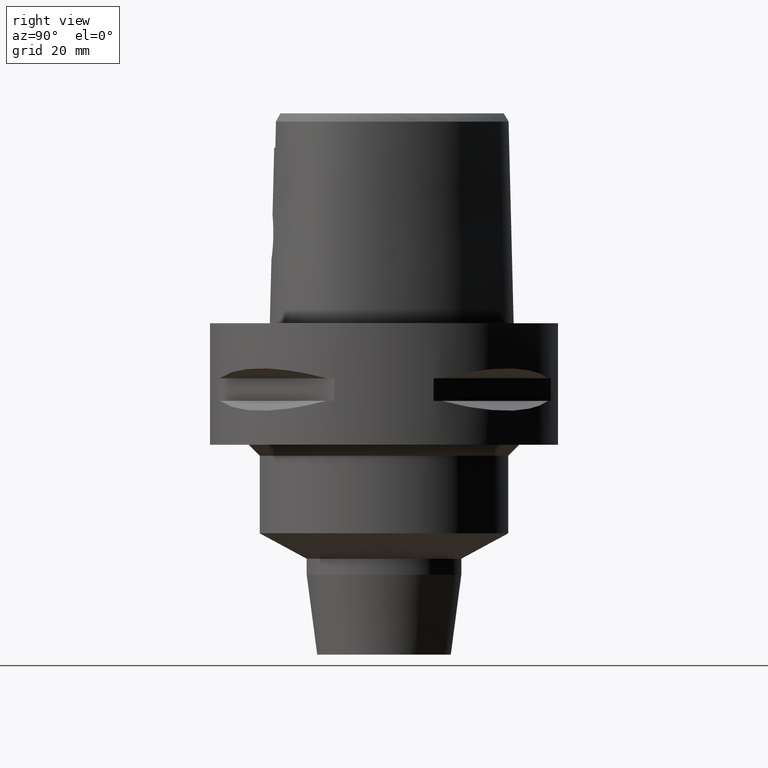
[diagram: clean part render]
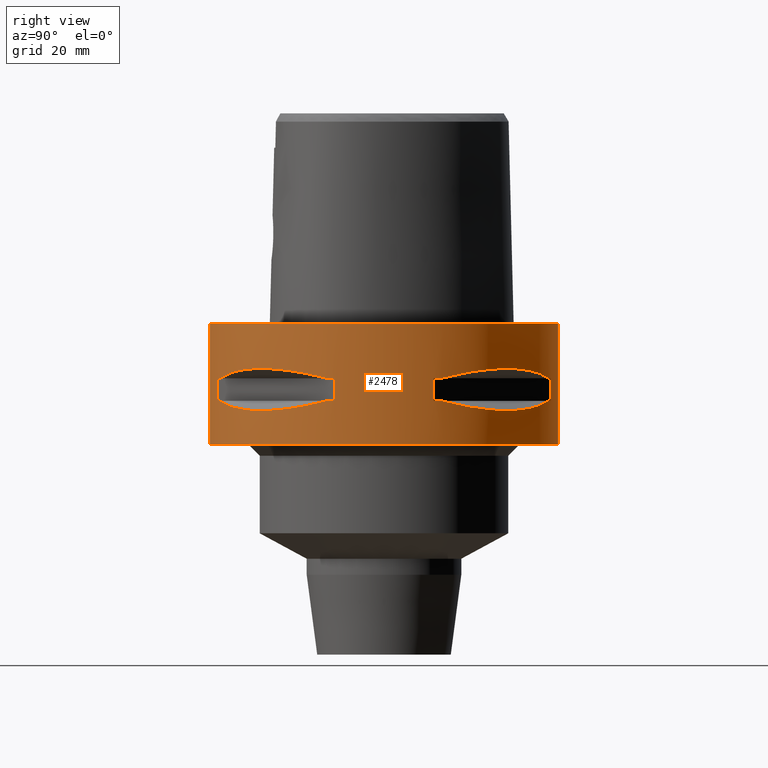
[diagram: same view with one face highlighted and labeled with its STEP entity id]
A machine part, right view. The second image highlights one B-rep face of the part: STEP entity #2478.
In plain terms, the highlighted cylindrical surface (partial cylindrical patch) has radius 31.5 mm, axis along (0, 0, -1).
Its self-contained STEP definition (entity closure, byte-faithful):
#309=CARTESIAN_POINT('',(0.E0,0.E0,0.E0));
#310=DIRECTION('',(0.E0,0.E0,-1.E0));
#311=DIRECTION('',(0.E0,1.E0,0.E0));
#312=AXIS2_PLACEMENT_3D('',#309,#310,#311);
#407=DIRECTION('',(0.E0,0.E0,-1.E0));
#408=VECTOR('',#407,2.2E1);
#409=CARTESIAN_POINT('',(0.E0,-3.15E1,0.E0));
#410=LINE('',#409,#408);
#464=DIRECTION('',(0.E0,0.E0,-1.E0));
#465=VECTOR('',#464,2.2E1);
#466=CARTESIAN_POINT('',(0.E0,3.15E1,0.E0));
#467=LINE('',#466,#465);
#471=DIRECTION('',(0.E0,0.E0,-1.E0));
#472=VECTOR('',#471,4.1E0);
#473=CARTESIAN_POINT('',(8.981198972018E0,-3.019251670572E1,-9.95E0));
#474=LINE('',#473,#472);
#478=CARTESIAN_POINT('',(1.044775724750E1,-2.971690375018E1,-1.405E1));
#479=CARTESIAN_POINT('',(1.282388988809E1,-2.888151197365E1,-1.467900482380E1));
#480=CARTESIAN_POINT('',(1.711282138769E1,-2.674739463903E1,-1.555870402292E1));
#481=CARTESIAN_POINT('',(2.244574140438E1,-2.244574140438E1,-1.597971692370E1));
#482=CARTESIAN_POINT('',(2.674739463903E1,-1.711282138769E1,-1.555870402292E1));
#483=CARTESIAN_POINT('',(2.888151197365E1,-1.282388988809E1,-1.467900482380E1));
#484=CARTESIAN_POINT('',(2.971690375018E1,-1.044775724750E1,-1.405E1));
#489=DIRECTION('',(0.E0,0.E0,1.E0));
#490=VECTOR('',#489,4.1E0);
#491=CARTESIAN_POINT('',(3.019251670572E1,-8.981198972018E0,-1.405E1));
#492=LINE('',#491,#490);
#496=DIRECTION('',(0.E0,0.E0,-1.E0));
#497=VECTOR('',#496,4.1E0);
#498=CARTESIAN_POINT('',(3.019251670572E1,8.981198972018E0,-9.95E0));
#499=LINE('',#498,#497);
#503=CARTESIAN_POINT('',(2.971690375018E1,1.044775724750E1,-1.405E1));
#504=CARTESIAN_POINT('',(2.888151197365E1,1.282388988809E1,-1.467900482380E1));
#505=CARTESIAN_POINT('',(2.674739463903E1,1.711282138769E1,-1.555870402292E1));
#506=CARTESIAN_POINT('',(2.244574140438E1,2.244574140438E1,-1.597971692370E1));
#507=CARTESIAN_POINT('',(1.711282138769E1,2.674739463903E1,-1.555870402292E1));
#508=CARTESIAN_POINT('',(1.282388988809E1,2.888151197365E1,-1.467900482380E1));
#509=CARTESIAN_POINT('',(1.044775724750E1,2.971690375018E1,-1.405E1));
#514=DIRECTION('',(0.E0,0.E0,1.E0));
#515=VECTOR('',#514,4.1E0);
#516=CARTESIAN_POINT('',(8.981198972018E0,3.019251670572E1,-1.405E1));
#517=LINE('',#516,#515);
#521=CARTESIAN_POINT('',(0.E0,0.E0,-2.2E1));
#522=DIRECTION('',(0.E0,0.E0,1.E0));
#523=DIRECTION('',(0.E0,-1.E0,0.E0));
#524=AXIS2_PLACEMENT_3D('',#521,#522,#523);
#1234=CARTESIAN_POINT('',(1.044775724750E1,-2.971690375018E1,
-9.949999999999E0));
#1235=CARTESIAN_POINT('',(1.282388988809E1,-2.888151197365E1,
-9.320995176198E0));
#1236=CARTESIAN_POINT('',(1.711282138769E1,-2.674739463903E1,
-8.441295977074E0));
#1237=CARTESIAN_POINT('',(2.244574140438E1,-2.244574140438E1,
-8.020283076294E0));
#1238=CARTESIAN_POINT('',(2.674739463903E1,-1.711282138769E1,
-8.441295977074E0));
#1239=CARTESIAN_POINT('',(2.888151197365E1,-1.282388988809E1,
-9.320995176198E0));
#1240=CARTESIAN_POINT('',(2.971690375018E1,-1.044775724750E1,
-9.949999999999E0));
#1245=CARTESIAN_POINT('',(0.E0,0.E0,-9.95E0));
#1246=DIRECTION('',(0.E0,0.E0,1.E0));
#1247=DIRECTION('',(9.433937698469E-1,-3.316748332541E-1,0.E0));
#1248=AXIS2_PLACEMENT_3D('',#1245,#1246,#1247);
#1253=CARTESIAN_POINT('',(0.E0,0.E0,-9.95E0));
#1254=DIRECTION('',(0.E0,0.E0,1.E0));
#1255=DIRECTION('',(2.851174276832E-1,-9.584925938323E-1,0.E0));
#1256=AXIS2_PLACEMENT_3D('',#1253,#1254,#1255);
#1275=CARTESIAN_POINT('',(0.E0,0.E0,-1.405E1));
#1276=DIRECTION('',(0.E0,0.E0,-1.E0));
#1277=DIRECTION('',(9.584925938323E-1,-2.851174276832E-1,0.E0));
#1278=AXIS2_PLACEMENT_3D('',#1275,#1276,#1277);
#1283=CARTESIAN_POINT('',(0.E0,0.E0,-1.405E1));
#1284=DIRECTION('',(0.E0,0.E0,-1.E0));
#1285=DIRECTION('',(3.316748332541E-1,-9.433937698469E-1,0.E0));
#1286=AXIS2_PLACEMENT_3D('',#1283,#1284,#1285);
#1305=CARTESIAN_POINT('',(2.971690375018E1,1.044775724750E1,-9.949999999999E0));
#1306=CARTESIAN_POINT('',(2.888151197365E1,1.282388988809E1,-9.320995176198E0));
#1307=CARTESIAN_POINT('',(2.674739463903E1,1.711282138769E1,-8.441295977074E0));
#1308=CARTESIAN_POINT('',(2.244574140438E1,2.244574140438E1,-8.020283076294E0));
#1309=CARTESIAN_POINT('',(1.711282138769E1,2.674739463903E1,-8.441295977074E0));
#1310=CARTESIAN_POINT('',(1.282388988809E1,2.888151197365E1,-9.320995176198E0));
#1311=CARTESIAN_POINT('',(1.044775724750E1,2.971690375018E1,-9.949999999999E0));
#1316=CARTESIAN_POINT('',(0.E0,0.E0,-9.95E0));
#1317=DIRECTION('',(0.E0,0.E0,1.E0));
#1318=DIRECTION('',(3.316748332541E-1,9.433937698469E-1,0.E0));
#1319=AXIS2_PLACEMENT_3D('',#1316,#1317,#1318);
#1324=CARTESIAN_POINT('',(0.E0,0.E0,-9.95E0));
#1325=DIRECTION('',(0.E0,0.E0,1.E0));
#1326=DIRECTION('',(9.584925938323E-1,2.851174276832E-1,0.E0));
#1327=AXIS2_PLACEMENT_3D('',#1324,#1325,#1326);
#1346=CARTESIAN_POINT('',(0.E0,0.E0,-1.405E1));
#1347=DIRECTION('',(0.E0,0.E0,-1.E0));
#1348=DIRECTION('',(2.851174276832E-1,9.584925938323E-1,0.E0));
#1349=AXIS2_PLACEMENT_3D('',#1346,#1347,#1348);
#1354=CARTESIAN_POINT('',(0.E0,0.E0,-1.405E1));
#1355=DIRECTION('',(0.E0,0.E0,-1.E0));
#1356=DIRECTION('',(9.433937698469E-1,3.316748332541E-1,0.E0));
#1357=AXIS2_PLACEMENT_3D('',#1354,#1355,#1356);
#1544=CARTESIAN_POINT('',(0.E0,-3.15E1,0.E0));
#1545=CARTESIAN_POINT('',(0.E0,3.15E1,0.E0));
#1546=VERTEX_POINT('',#1544);
#1547=VERTEX_POINT('',#1545);
#1548=CARTESIAN_POINT('',(0.E0,3.15E1,-2.2E1));
#1549=VERTEX_POINT('',#1548);
#1550=CARTESIAN_POINT('',(0.E0,-3.15E1,-2.2E1));
#1551=VERTEX_POINT('',#1550);
#1578=VERTEX_POINT('',#1234);
#1579=VERTEX_POINT('',#1240);
#1580=CARTESIAN_POINT('',(8.981198972020E0,-3.019251670572E1,-9.95E0));
#1581=VERTEX_POINT('',#1580);
#1582=CARTESIAN_POINT('',(8.981198972018E0,-3.019251670572E1,-1.405E1));
#1583=VERTEX_POINT('',#1582);
#1584=CARTESIAN_POINT('',(1.044775724750E1,-2.971690375018E1,-1.405E1));
#1585=VERTEX_POINT('',#1584);
#1586=VERTEX_POINT('',#484);
#1587=CARTESIAN_POINT('',(3.019251670572E1,-8.981198972020E0,-1.405E1));
#1588=VERTEX_POINT('',#1587);
#1589=CARTESIAN_POINT('',(3.019251670572E1,-8.981198972018E0,-9.95E0));
#1590=VERTEX_POINT('',#1589);
#1591=VERTEX_POINT('',#1305);
#1592=VERTEX_POINT('',#1311);
#1593=CARTESIAN_POINT('',(3.019251670572E1,8.981198972020E0,-9.95E0));
#1594=VERTEX_POINT('',#1593);
#1595=CARTESIAN_POINT('',(3.019251670572E1,8.981198972018E0,-1.405E1));
#1596=VERTEX_POINT('',#1595);
#1597=CARTESIAN_POINT('',(2.971690375018E1,1.044775724750E1,-1.405E1));
#1598=VERTEX_POINT('',#1597);
#1599=VERTEX_POINT('',#509);
#1600=CARTESIAN_POINT('',(8.981198972020E0,3.019251670572E1,-1.405E1));
#1601=VERTEX_POINT('',#1600);
#1602=CARTESIAN_POINT('',(8.981198972018E0,3.019251670572E1,-9.95E0));
#1603=VERTEX_POINT('',#1602);
#2430=CARTESIAN_POINT('',(0.E0,0.E0,3.E0));
#2431=DIRECTION('',(0.E0,0.E0,-1.E0));
#2432=DIRECTION('',(0.E0,-1.E0,0.E0));
#2433=AXIS2_PLACEMENT_3D('',#2430,#2431,#2432);
#2434=CYLINDRICAL_SURFACE('',#2433,3.15E1);
#2435=ORIENTED_EDGE('',*,*,#2384,.T.);
#2437=ORIENTED_EDGE('',*,*,#2436,.F.);
#2438=ORIENTED_EDGE('',*,*,#2387,.F.);
#2439=ORIENTED_EDGE('',*,*,#2369,.F.);
#2440=EDGE_LOOP('',(#2435,#2437,#2438,#2439));
#2441=FACE_OUTER_BOUND('',#2440,.F.);
#2443=ORIENTED_EDGE('',*,*,#2442,.F.);
#2445=ORIENTED_EDGE('',*,*,#2444,.F.);
#2447=ORIENTED_EDGE('',*,*,#2446,.T.);
#2449=ORIENTED_EDGE('',*,*,#2448,.F.);
#2451=ORIENTED_EDGE('',*,*,#2450,.T.);
#2453=ORIENTED_EDGE('',*,*,#2452,.F.);
#2455=ORIENTED_EDGE('',*,*,#2454,.T.);
#2457=ORIENTED_EDGE('',*,*,#2456,.F.);
#2458=EDGE_LOOP('',(#2443,#2445,#2447,#2449,#2451,#2453,#2455,#2457));
#2459=FACE_BOUND('',#2458,.F.);
#2461=ORIENTED_EDGE('',*,*,#2460,.F.);
#2463=ORIENTED_EDGE('',*,*,#2462,.F.);
#2465=ORIENTED_EDGE('',*,*,#2464,.T.);
#2467=ORIENTED_EDGE('',*,*,#2466,.F.);
#2469=ORIENTED_EDGE('',*,*,#2468,.T.);
#2471=ORIENTED_EDGE('',*,*,#2470,.F.);
#2473=ORIENTED_EDGE('',*,*,#2472,.T.);
#2475=ORIENTED_EDGE('',*,*,#2474,.F.);
#2476=EDGE_LOOP('',(#2461,#2463,#2465,#2467,#2469,#2471,#2473,#2475));
#2477=FACE_BOUND('',#2476,.F.);
#313=CIRCLE('',#312,3.15E1);
#485=B_SPLINE_CURVE_WITH_KNOTS('',3,(#478,#479,#480,#481,#482,#483,#484),
.UNSPECIFIED.,.F.,.F.,(4,1,1,1,4),(0.E0,2.5E-1,5.E-1,7.5E-1,1.E0),
.UNSPECIFIED.);
#510=B_SPLINE_CURVE_WITH_KNOTS('',3,(#503,#504,#505,#506,#507,#508,#509),
.UNSPECIFIED.,.F.,.F.,(4,1,1,1,4),(0.E0,2.5E-1,5.E-1,7.5E-1,1.E0),
.UNSPECIFIED.);
#525=CIRCLE('',#524,3.15E1);
#1241=B_SPLINE_CURVE_WITH_KNOTS('',3,(#1234,#1235,#1236,#1237,#1238,#1239,
#1240),.UNSPECIFIED.,.F.,.F.,(4,1,1,1,4),(0.E0,2.5E-1,5.E-1,7.5E-1,1.E0),
.UNSPECIFIED.);
#1249=CIRCLE('',#1248,3.15E1);
#1257=CIRCLE('',#1256,3.15E1);
#1279=CIRCLE('',#1278,3.15E1);
#1287=CIRCLE('',#1286,3.15E1);
#1312=B_SPLINE_CURVE_WITH_KNOTS('',3,(#1305,#1306,#1307,#1308,#1309,#1310,
#1311),.UNSPECIFIED.,.F.,.F.,(4,1,1,1,4),(0.E0,2.5E-1,5.E-1,7.5E-1,1.E0),
.UNSPECIFIED.);
#1320=CIRCLE('',#1319,3.15E1);
#1328=CIRCLE('',#1327,3.15E1);
#1350=CIRCLE('',#1349,3.15E1);
#1358=CIRCLE('',#1357,3.15E1);
#2369=EDGE_CURVE('',#1547,#1546,#313,.T.);
#2384=EDGE_CURVE('',#1547,#1549,#467,.T.);
#2387=EDGE_CURVE('',#1546,#1551,#410,.T.);
#2436=EDGE_CURVE('',#1551,#1549,#525,.T.);
#2442=EDGE_CURVE('',#1578,#1579,#1241,.T.);
#2444=EDGE_CURVE('',#1581,#1578,#1257,.T.);
#2446=EDGE_CURVE('',#1581,#1583,#474,.T.);
#2448=EDGE_CURVE('',#1585,#1583,#1287,.T.);
#2450=EDGE_CURVE('',#1585,#1586,#485,.T.);
#2452=EDGE_CURVE('',#1588,#1586,#1279,.T.);
#2454=EDGE_CURVE('',#1588,#1590,#492,.T.);
#2456=EDGE_CURVE('',#1579,#1590,#1249,.T.);
#2460=EDGE_CURVE('',#1591,#1592,#1312,.T.);
#2462=EDGE_CURVE('',#1594,#1591,#1328,.T.);
#2464=EDGE_CURVE('',#1594,#1596,#499,.T.);
#2466=EDGE_CURVE('',#1598,#1596,#1358,.T.);
#2468=EDGE_CURVE('',#1598,#1599,#510,.T.);
#2470=EDGE_CURVE('',#1601,#1599,#1350,.T.);
#2472=EDGE_CURVE('',#1601,#1603,#517,.T.);
#2474=EDGE_CURVE('',#1592,#1603,#1320,.T.);
#2478=ADVANCED_FACE('',(#2441,#2459,#2477),#2434,.T.);